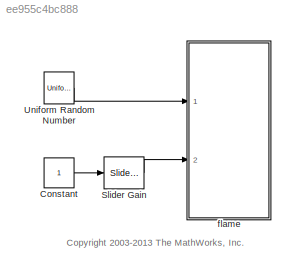
MODEL slx_ee955c4bc888
KIND model
CONFIG AbsTol = auto
CONFIG FixedStep = auto
CONFIG MaxStep = auto
CONFIG MinStep = auto
CONFIG PreLoadFcn = %load mtlb;\n\nFs = 8000;
CONFIG RelTol = 1e-3
CONFIG SampleTimeConstraint = Unconstrained
CONFIG Solver = FixedStepDiscrete
CONFIG SolverMode = Auto
CONFIG SolverName = FixedStepDiscrete
CONFIG StartTime = 0.0
CONFIG StopTime = inf
BLOCK [Constant] Constant
BLOCK [Reference] Slider Gain  REF=simulink/Math
Operations/Slider
Gain
  Ports = [1, 1]
  SourceBlock = simulink/Math\nOperations/Slider\nGain
  SourceType = Slider Gain
  gain = 0.6544
  high = 1
  low = 0
BLOCK [UniformRandomNumber] Uniform Random Number
  Minimum = 0
  SampleTime = 0
  Seed = floor(rand(1,256) * 4560458)
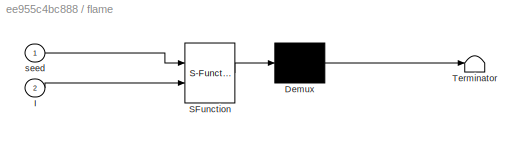
BLOCK [SubSystem] flame
  ErrorFcn = Stateflow.Translate.translate
  PermitHierarchicalResolution = ParametersOnly
  Ports = [2]
  RequestExecContextInheritance = off
  SFBlockType = MATLAB Function
  TreatAsAtomicUnit = on
  Variant = off
BLOCK [Demux] flame/ Demux 
  Outputs = 1
  Ports = [1, 1]
BLOCK [S-Function] flame/ SFunction 
  EnableBusSupport = off
  FunctionName = sf_sfun
  PortCounts = [2 1]
  Ports = [2, 1]
  SFunctionDeploymentMode = off
  Tag = Stateflow S-Function eml_fire_tmp 3
BLOCK [Terminator] flame/ Terminator 
BLOCK [Inport] flame/I
  IconDisplay = Port number
  Port = 2
BLOCK [Inport] flame/seed
  IconDisplay = Port number
ANNOTATION (root): <copyright redacted>
LINE Constant:1 -> Slider Gain:1
LINE Slider Gain:1 -> flame:2
LINE Uniform Random Number:1 -> flame:1
CHART flame states=1 transitions=1
  STATE_LABEL 'eML_blk_kernel()'
  STATE_LABEL "SCRIPT:\nfunction flame(seed, I)\n\npersistent p;\nif isempty(p)\n    p = zeros(64,256,'uint8');\nend\n\nWIDTH   = length(seed);\nHEIGHT  = size(p,1);\nnColors = 256;\n\nnRandTemp = seed;\nnRandTemp = abs(nRandTemp) * 2;\nnRandTemp = min(nRandTemp,1);\n\ngenerator = nRandTemp * nColors * I;\n\nfor y = 1 : 2 : (HEIGHT-4)\n    for x = 1 : WIDTH\n        \n        yb = y+2;\n        xb1 = x-1;\n        xb2 = x+1;\n        \n...<+1781ch>"
